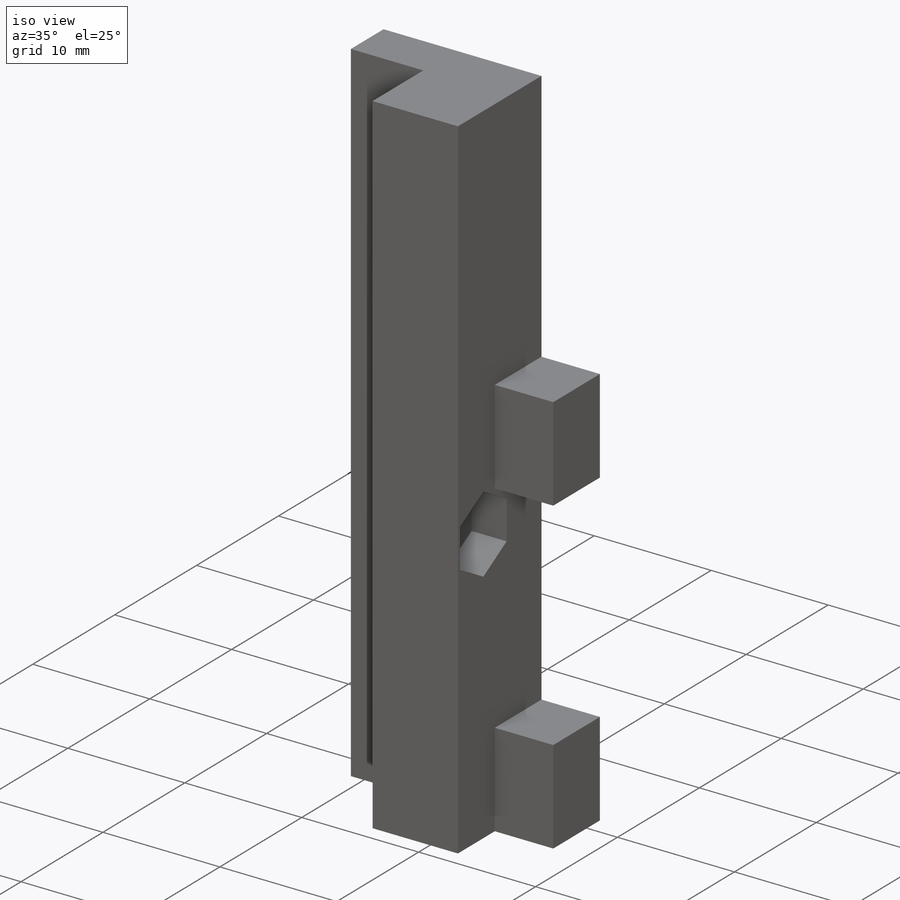
[diagram: iso view]
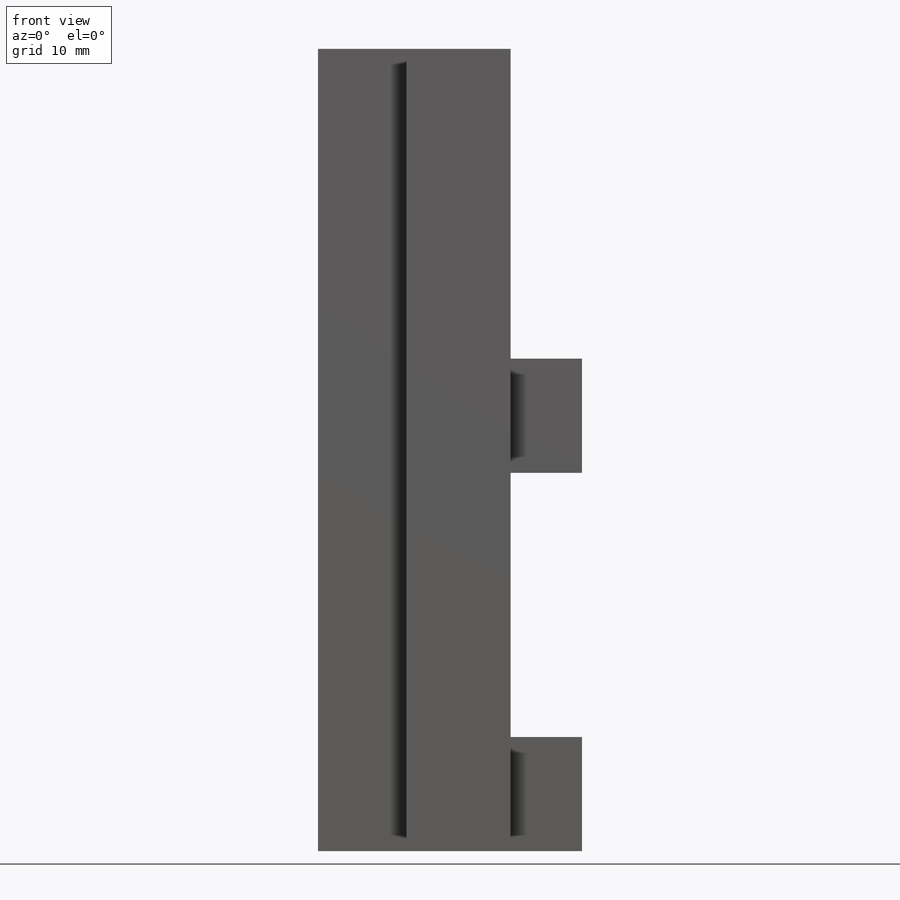
[diagram: front view]
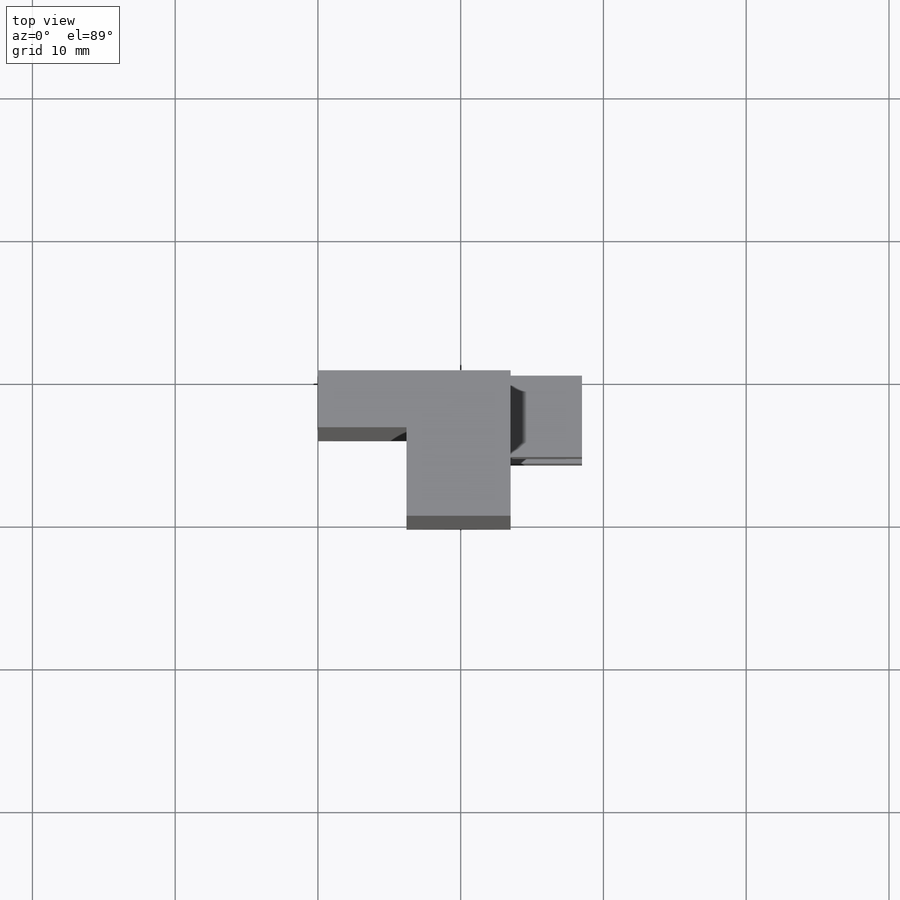
[diagram: top view]
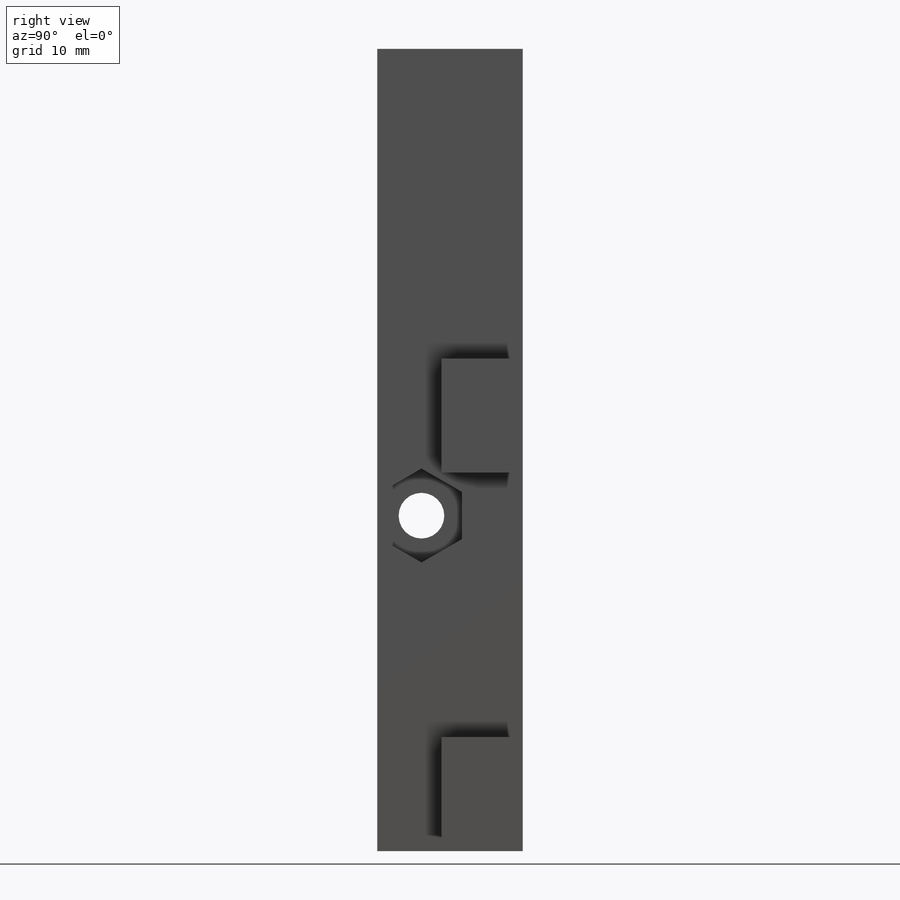
[diagram: right view]
SOLIDWORKS PART (.sldprt)
format: sldprt  version: not decoded by parser v0  size: 209,408 bytes
history: native  units: mm
features: sketch x6, extrude x4, plane x3, cut_extrude x2, material x1 (+13 scaffold rows collapsed)
feature tree (29):
  scaffold x13  (default folders/planes/origin — collapsed)
  material  "Material <sin especificar>"
  plane  "Alzado"
  plane  "Planta"
  plane  "Vista lateral"
  sketch  "Croquis5"  dims[D1=18.5mm D2=34.5mm D3=8.0mm D4=8.0mm D5=5.0mm]
  extrude  "Saliente-Extruir3"  Depth=4mm
  sketch  "Croquis6"  dims[c1.D1=6.2mm c1.D2=6.2mm c2.D1=0.0mm]
  extrude  "Saliente-Extruir4"  Depth=1.7mm
  sketch  "Croquis7"
  extrude  "Saliente-Extruir5"  Depth=4.5mm
  sketch  "Croquis8"  dims[D1=3.2mm D2=6.2mm D3=11.0mm]
  cut_extrude  "Cortar-Extruir3"  [1 undecoded]
  sketch  "Croquis9"  dims[D1=5.7mm]
  cut_extrude  "Cortar-Extruir4"  Depth=3mm
  sketch  "Croquis10"  dims[D1=0.0mm]
  extrude  "Saliente-Extruir6"  Depth=21.7mm
decode coverage: 10 of 12 modeling features carry decoded parameters
note: 1 parameter value undecoded
note: suppression state not decoded; provenance and decode notes live in map.json
